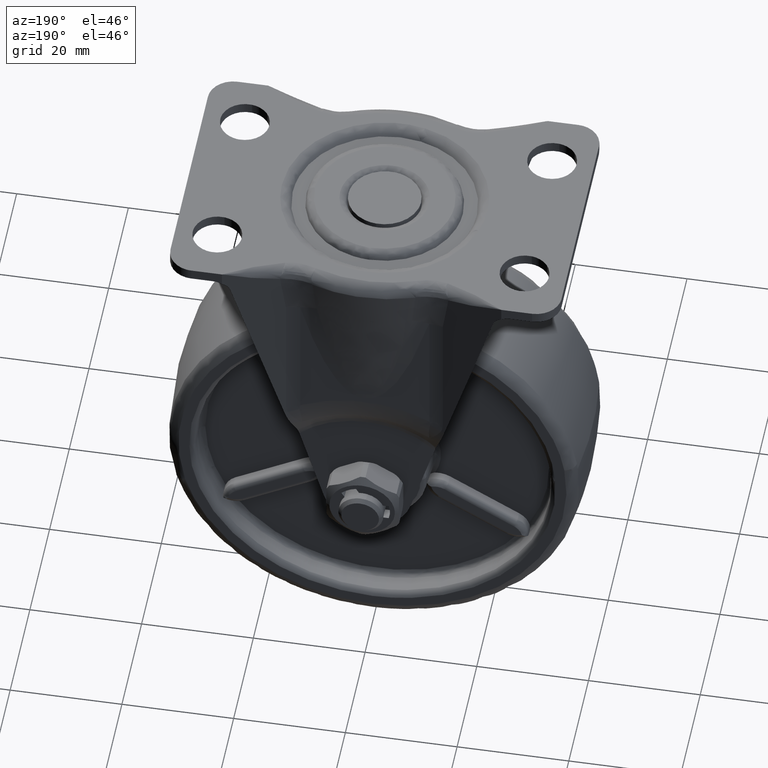
[diagram: clean part render]
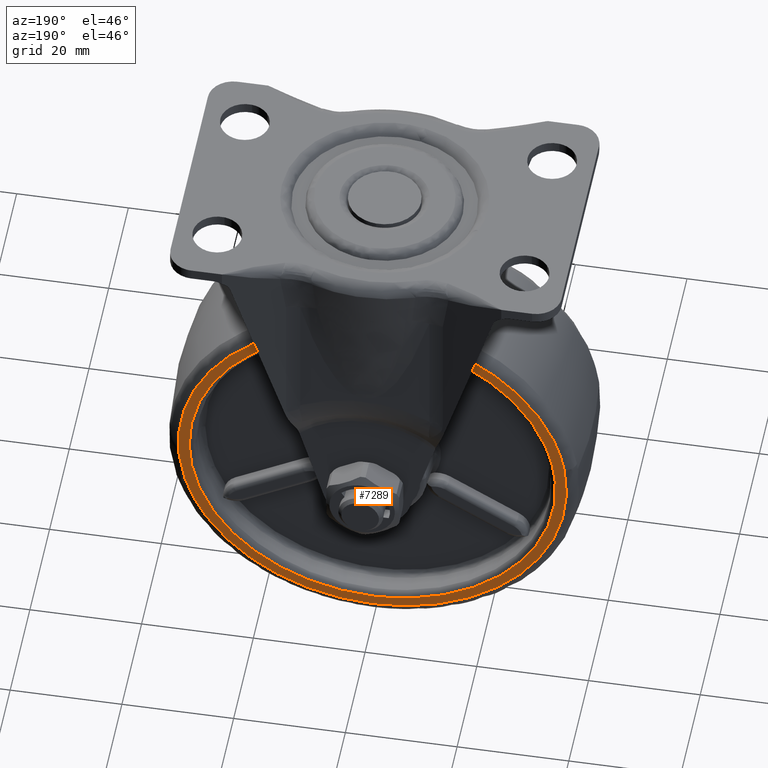
[diagram: same view with one face highlighted and labeled with its STEP entity id]
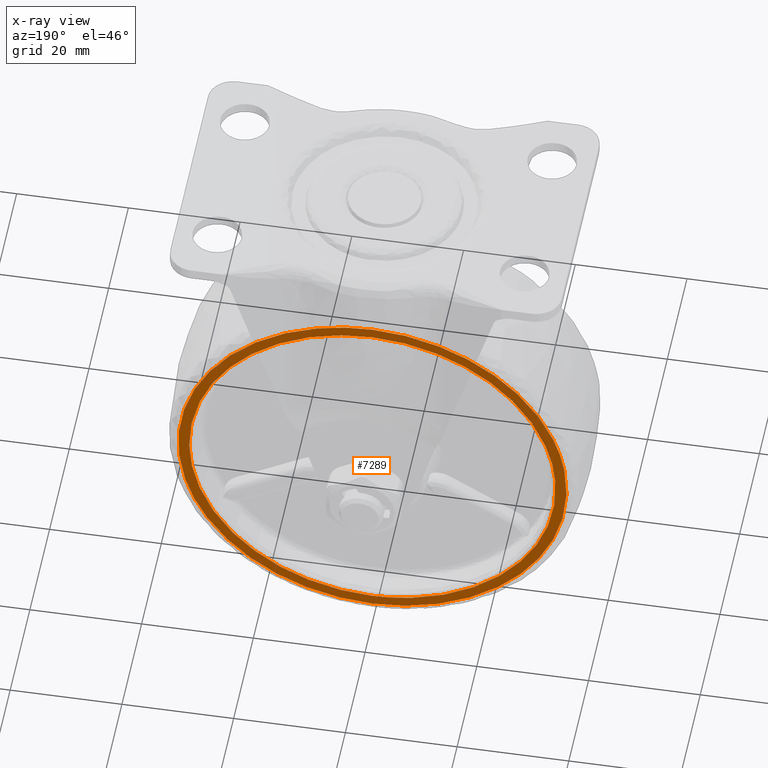
[diagram: x-ray of the same camera — body ghosted, the highlighted face saturated]
A machine part, auxiliary view. The second image highlights one B-rep face of the part: STEP entity #7289.
The next image is the same camera in x-ray: the body ghosted, the highlighted face saturated — about 0% of this face is hidden behind the body in this view.
In plain terms, the highlighted face is a freeform B-spline surface patch.
Its self-contained STEP definition (entity closure, byte-faithful):
#1799=CARTESIAN_POINT('',(33.514336538084827,12.500000000000000,-9.149878858244726));
#1800=VERTEX_POINT('',#1799);
#1814=CARTESIAN_POINT('',(0.0,12.500000000000000,34.740912999999999));
#1815=VERTEX_POINT('',#1814);
#1816=CARTESIAN_POINT('',(33.514336538084827,12.499999999999995,-9.149878858244726));
#1817=CARTESIAN_POINT('',(34.740912999999999,12.500000000000002,-4.657153075997242));
#1818=CARTESIAN_POINT('',(34.740912999999999,12.500000000000000,1.911231E-015));
#1819=CARTESIAN_POINT('',(34.740913000000006,12.500000000000000,34.740913000000006));
#1820=CARTESIAN_POINT('',(0.0,12.500000000000000,34.740912999999999));
#1828=(BOUNDED_CURVE()B_SPLINE_CURVE(2,(#1816,#1817,#1818,#1819,#1820),.UNSPECIFIED.,.F.,.U.)B_SPLINE_CURVE_WITH_KNOTS((3,2,3),(0.205098073247574,0.250000000000000,0.500000000000000),.UNSPECIFIED.)CURVE()GEOMETRIC_REPRESENTATION_ITEM()RATIONAL_B_SPLINE_CURVE((0.913685083899670,0.947394120570224,1.0,0.707106781186548,1.0))REPRESENTATION_ITEM(''));
#1829=EDGE_CURVE('',#1800,#1815,#1828,.T.);
#1831=CARTESIAN_POINT('',(-34.346664253601801,12.500000000000000,5.218974122423510));
#1832=VERTEX_POINT('',#1831);
#1833=CARTESIAN_POINT('',(0.0,12.500000000000000,34.740912999999999));
#1834=CARTESIAN_POINT('',(-29.860806937360163,12.499999999999998,34.740913000000006));
#1835=CARTESIAN_POINT('',(-34.346664253601801,12.500000000000002,5.218974122423510));
#1843=(BOUNDED_CURVE()B_SPLINE_CURVE(2,(#1833,#1834,#1835),.UNSPECIFIED.,.F.,.U.)B_SPLINE_CURVE_WITH_KNOTS((3,3),(0.500000000000000,0.724102415376093),.UNSPECIFIED.)CURVE()GEOMETRIC_REPRESENTATION_ITEM()RATIONAL_B_SPLINE_CURVE((1.0,0.737447688866507,0.945604234433744))REPRESENTATION_ITEM(''));
#1844=EDGE_CURVE('',#1815,#1832,#1843,.T.);
#1946=CARTESIAN_POINT('',(0.0,12.500000000000000,-34.740912999999999));
#1947=VERTEX_POINT('',#1946);
#1948=CARTESIAN_POINT('',(-34.346664253601809,12.500000000000002,5.218974122423510));
#1949=CARTESIAN_POINT('',(-34.740912999999999,12.500000000000000,2.624378117445340));
#1950=CARTESIAN_POINT('',(-34.740912999999999,12.500000000000000,1.911231E-015));
#1951=CARTESIAN_POINT('',(-34.740913000000006,12.500000000000000,-34.740913000000006));
#1952=CARTESIAN_POINT('',(0.0,12.500000000000000,-34.740912999999999));
#1960=(BOUNDED_CURVE()B_SPLINE_CURVE(2,(#1948,#1949,#1950,#1951,#1952),.UNSPECIFIED.,.F.,.U.)B_SPLINE_CURVE_WITH_KNOTS((3,2,3),(0.724102415376093,0.750000000000000,1.0),.UNSPECIFIED.)CURVE()GEOMETRIC_REPRESENTATION_ITEM()RATIONAL_B_SPLINE_CURVE((0.945604234433745,0.969659092320041,1.0,0.707106781186548,1.0))REPRESENTATION_ITEM(''));
#1961=EDGE_CURVE('',#1832,#1947,#1960,.T.);
#1963=CARTESIAN_POINT('',(0.0,12.500000000000000,-34.740912999999999));
#1964=CARTESIAN_POINT('',(26.527629153589423,12.499999999999998,-34.740912999999992));
#1965=CARTESIAN_POINT('',(33.514336538084841,12.500000000000002,-9.149878858244726));
#1973=(BOUNDED_CURVE()B_SPLINE_CURVE(2,(#1963,#1964,#1965),.UNSPECIFIED.,.F.,.U.)B_SPLINE_CURVE_WITH_KNOTS((3,3),(0.0,0.205098073247574),.UNSPECIFIED.)CURVE()GEOMETRIC_REPRESENTATION_ITEM()RATIONAL_B_SPLINE_CURVE((1.0,0.759712660616324,0.913685083899670))REPRESENTATION_ITEM(''));
#1974=EDGE_CURVE('',#1947,#1800,#1973,.T.);
#2009=CARTESIAN_POINT('',(-32.720153104085568,12.500000000000000,2.287250581914352));
#2010=VERTEX_POINT('',#2009);
#2011=CARTESIAN_POINT('',(0.0,12.500000000000000,-32.799999000000007));
#2012=VERTEX_POINT('',#2011);
#2013=CARTESIAN_POINT('',(-32.720153104085568,12.499999999999996,2.287250581914352));
#2014=CARTESIAN_POINT('',(-32.799999000000007,12.499999999999996,1.145018965776549));
#2015=CARTESIAN_POINT('',(-32.799999000000007,12.500000000000000,1.911231E-015));
#2016=CARTESIAN_POINT('',(-32.799999000000000,12.500000000000000,-32.799999000000000));
#2017=CARTESIAN_POINT('',(0.0,12.500000000000000,-32.799999000000007));
#2025=(BOUNDED_CURVE()B_SPLINE_CURVE(2,(#2013,#2014,#2015,#2016,#2017),.UNSPECIFIED.,.F.,.U.)B_SPLINE_CURVE_WITH_KNOTS((3,2,3),(0.737833686535186,0.750000000000000,1.0),.UNSPECIFIED.)CURVE()GEOMETRIC_REPRESENTATION_ITEM()RATIONAL_B_SPLINE_CURVE((0.972879876387175,0.985746277152788,1.0,0.707106781186548,1.0))REPRESENTATION_ITEM(''));
#2026=EDGE_CURVE('',#2010,#2012,#2025,.T.);
#2043=CARTESIAN_POINT('',(32.797409261522283,12.500000000000000,-0.412166113112770));
#2044=VERTEX_POINT('',#2043);
#2058=CARTESIAN_POINT('',(0.0,12.500000000000000,-32.799999000000007));
#2059=CARTESIAN_POINT('',(32.390390279162389,12.499999999999998,-32.799999000000007));
#2060=CARTESIAN_POINT('',(32.797409261522276,12.499999999999996,-0.412166113112770));
#2068=(BOUNDED_CURVE()B_SPLINE_CURVE(2,(#2058,#2059,#2060),.UNSPECIFIED.,.F.,.U.)B_SPLINE_CURVE_WITH_KNOTS((3,3),(0.0,0.247784295735586),.UNSPECIFIED.)CURVE()GEOMETRIC_REPRESENTATION_ITEM()RATIONAL_B_SPLINE_CURVE((1.0,0.709702640202320,0.994854295215584))REPRESENTATION_ITEM(''));
#2069=EDGE_CURVE('',#2012,#2044,#2068,.T.);
#2097=CARTESIAN_POINT('',(0.0,12.500000000000000,32.799999000000007));
#2098=VERTEX_POINT('',#2097);
#2099=CARTESIAN_POINT('',(0.0,12.500000000000000,32.799999000000007));
#2100=CARTESIAN_POINT('',(-30.587207657817249,12.499999999999998,32.799999000000000));
#2101=CARTESIAN_POINT('',(-32.720153104085568,12.499999999999996,2.287250581914352));
#2109=(BOUNDED_CURVE()B_SPLINE_CURVE(2,(#2099,#2100,#2101),.UNSPECIFIED.,.F.,.U.)B_SPLINE_CURVE_WITH_KNOTS((3,3),(0.500000000000000,0.737833686535185),.UNSPECIFIED.)CURVE()GEOMETRIC_REPRESENTATION_ITEM()RATIONAL_B_SPLINE_CURVE((1.0,0.721360504033760,0.972879876387173))REPRESENTATION_ITEM(''));
#2110=EDGE_CURVE('',#2098,#2010,#2109,.T.);
#2112=CARTESIAN_POINT('',(32.797409261522276,12.499999999999998,-0.412166113112770));
#2113=CARTESIAN_POINT('',(32.799999000000014,12.500000000000004,-0.206091201209623));
#2114=CARTESIAN_POINT('',(32.799999000000007,12.500000000000000,1.911231E-015));
#2115=CARTESIAN_POINT('',(32.799999000000000,12.500000000000000,32.799999000000000));
#2116=CARTESIAN_POINT('',(0.0,12.500000000000000,32.799999000000007));
#2124=(BOUNDED_CURVE()B_SPLINE_CURVE(2,(#2112,#2113,#2114,#2115,#2116),.UNSPECIFIED.,.F.,.U.)B_SPLINE_CURVE_WITH_KNOTS((3,2,3),(0.247784295735586,0.250000000000000,0.500000000000000),.UNSPECIFIED.)CURVE()GEOMETRIC_REPRESENTATION_ITEM()RATIONAL_B_SPLINE_CURVE((0.994854295215584,0.997404140984228,1.0,0.707106781186548,1.0))REPRESENTATION_ITEM(''));
#2125=EDGE_CURVE('',#2044,#2098,#2124,.T.);
#7272=CARTESIAN_POINT('',(-38.202804964007569,12.500000000000000,38.211530726276401));
#7273=CARTESIAN_POINT('',(-38.202804964007569,12.500000000000000,-38.211531968708279));
#7274=CARTESIAN_POINT('',(38.202673727141402,12.500000000000000,38.211530726276401));
#7275=CARTESIAN_POINT('',(38.202673727141402,12.500000000000000,-38.211531968708279));
#7276=B_SPLINE_SURFACE_WITH_KNOTS('',1,1,((#7272,#7274),(#7273,#7275)),.UNSPECIFIED.,.F.,.F.,.U.,(2,2),(2,2),(0.0,76.423062694984679),(0.0,76.405478691148971),.UNSPECIFIED.);
#7277=ORIENTED_EDGE('',*,*,#1961,.F.);
#7278=ORIENTED_EDGE('',*,*,#1844,.F.);
#7279=ORIENTED_EDGE('',*,*,#1829,.F.);
#7280=ORIENTED_EDGE('',*,*,#1974,.F.);
#7281=EDGE_LOOP('',(#7277,#7278,#7279,#7280));
#7282=FACE_OUTER_BOUND('',#7281,.T.);
#7283=ORIENTED_EDGE('',*,*,#2069,.T.);
#7284=ORIENTED_EDGE('',*,*,#2125,.T.);
#7285=ORIENTED_EDGE('',*,*,#2110,.T.);
#7286=ORIENTED_EDGE('',*,*,#2026,.T.);
#7287=EDGE_LOOP('',(#7283,#7284,#7285,#7286));
#7288=FACE_BOUND('',#7287,.T.);
#7289=ADVANCED_FACE('',(#7282,#7288),#7276,.F.);